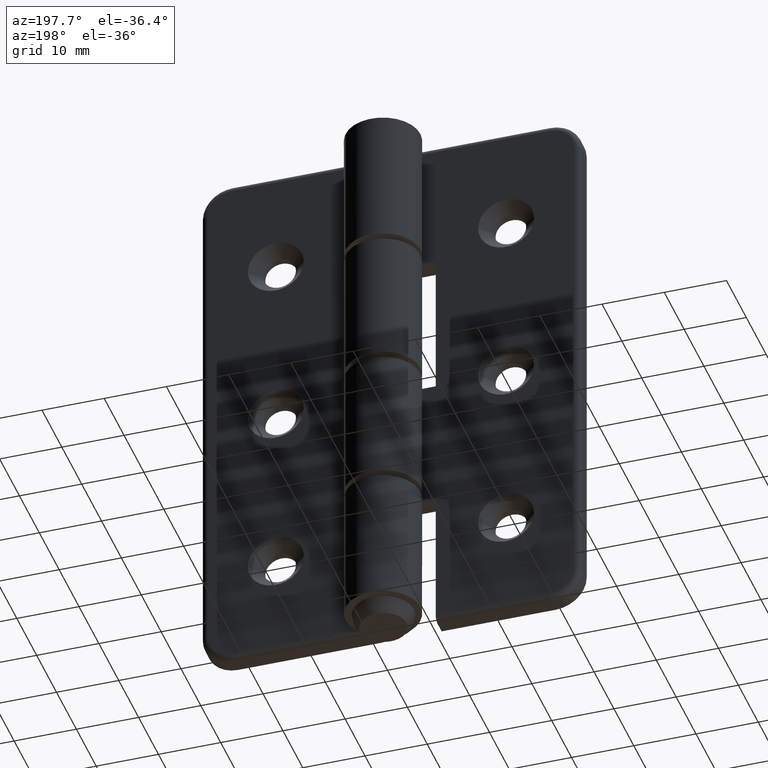
[diagram: clean part render]
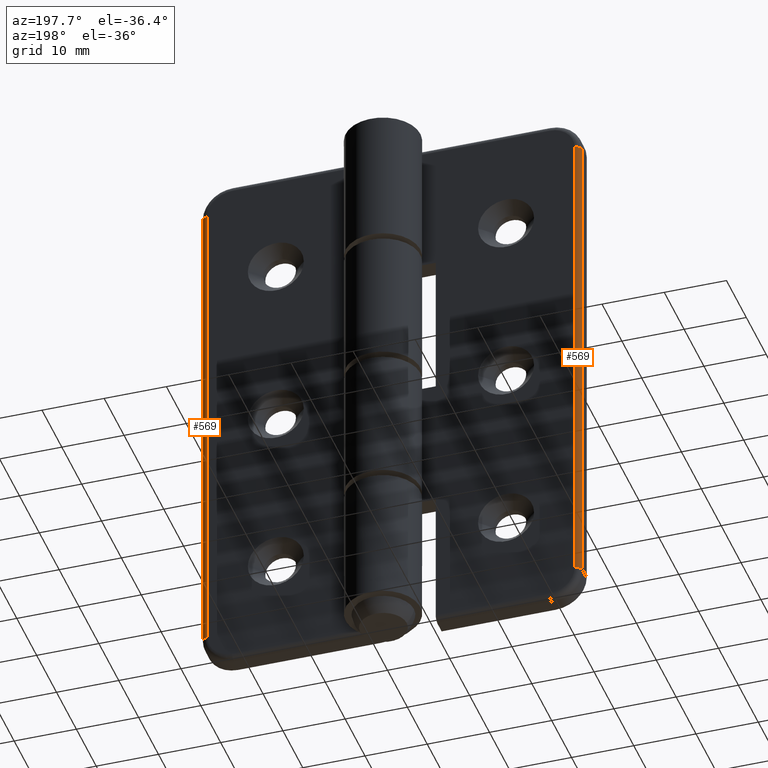
[diagram: same view with one multi-face feature highlighted, each face labeled with its STEP entity id]
A machine part, auxiliary view. The highlighted faces form ONE feature: a constant-radius fillet chain: 2 tangent blend faces with common blend radius 1 mm. The faces share edges in the B-rep.
Their STEP definitions:
[1] entity #569 (Cylinder):
#50=LINE('',#910,#83);
#51=LINE('',#913,#84);
#83=VECTOR('',#727,80.);
#84=VECTOR('',#730,80.);
#120=CYLINDRICAL_SURFACE('',#621,1.);
#160=FACE_OUTER_BOUND('',#201,.T.);
#201=EDGE_LOOP('',(#430,#431,#432,#433));
#254=CIRCLE('',#617,1.);
#257=CIRCLE('',#622,1.);
#293=VERTEX_POINT('',#897);
#294=VERTEX_POINT('',#899);
#297=VERTEX_POINT('',#909);
#298=VERTEX_POINT('',#911);
#347=EDGE_CURVE('',#293,#294,#254,.T.);
#352=EDGE_CURVE('',#293,#297,#50,.T.);
#353=EDGE_CURVE('',#298,#297,#257,.T.);
#354=EDGE_CURVE('',#298,#294,#51,.T.);
#430=ORIENTED_EDGE('',*,*,#347,.F.);
#431=ORIENTED_EDGE('',*,*,#352,.T.);
#432=ORIENTED_EDGE('',*,*,#353,.F.);
#433=ORIENTED_EDGE('',*,*,#354,.T.);
#569=ADVANCED_FACE('',(#160),#120,.T.);
#617=AXIS2_PLACEMENT_3D('',#900,#715,#716);
#621=AXIS2_PLACEMENT_3D('',#908,#725,#726);
#622=AXIS2_PLACEMENT_3D('',#912,#728,#729);
#715=DIRECTION('center_axis',(0.,0.,-1.));
#716=DIRECTION('ref_axis',(-1.,0.,0.));
#725=DIRECTION('center_axis',(0.,0.,-1.));
#726=DIRECTION('ref_axis',(-0.707106781186546,0.707106781186549,0.));
#727=DIRECTION('',(0.,0.,1.));
#728=DIRECTION('center_axis',(0.,0.,1.));
#729=DIRECTION('ref_axis',(0.,1.,0.));
#730=DIRECTION('',(0.,0.,-1.));
#897=CARTESIAN_POINT('',(-30.5,2.,-85.));
#899=CARTESIAN_POINT('',(-29.5,3.,-85.));
#900=CARTESIAN_POINT('Origin',(-29.5,2.,-85.));
#908=CARTESIAN_POINT('Origin',(-29.5,2.,0.));
#909=CARTESIAN_POINT('',(-30.5,2.,-5.));
#910=CARTESIAN_POINT('',(-30.5,2.,0.));
#911=CARTESIAN_POINT('',(-29.5,3.,-5.));
#912=CARTESIAN_POINT('Origin',(-29.5,2.,-5.));
#913=CARTESIAN_POINT('',(-29.5,3.,0.));
[2] entity #569 (Cylinder):
#50=LINE('',#910,#83);
#51=LINE('',#913,#84);
#83=VECTOR('',#727,80.);
#84=VECTOR('',#730,80.);
#120=CYLINDRICAL_SURFACE('',#621,1.);
#160=FACE_OUTER_BOUND('',#201,.T.);
#201=EDGE_LOOP('',(#430,#431,#432,#433));
#254=CIRCLE('',#617,1.);
#257=CIRCLE('',#622,1.);
#293=VERTEX_POINT('',#897);
#294=VERTEX_POINT('',#899);
#297=VERTEX_POINT('',#909);
#298=VERTEX_POINT('',#911);
#347=EDGE_CURVE('',#293,#294,#254,.T.);
#352=EDGE_CURVE('',#293,#297,#50,.T.);
#353=EDGE_CURVE('',#298,#297,#257,.T.);
#354=EDGE_CURVE('',#298,#294,#51,.T.);
#430=ORIENTED_EDGE('',*,*,#347,.F.);
#431=ORIENTED_EDGE('',*,*,#352,.T.);
#432=ORIENTED_EDGE('',*,*,#353,.F.);
#433=ORIENTED_EDGE('',*,*,#354,.T.);
#569=ADVANCED_FACE('',(#160),#120,.T.);
#617=AXIS2_PLACEMENT_3D('',#900,#715,#716);
#621=AXIS2_PLACEMENT_3D('',#908,#725,#726);
#622=AXIS2_PLACEMENT_3D('',#912,#728,#729);
#715=DIRECTION('center_axis',(0.,0.,-1.));
#716=DIRECTION('ref_axis',(-1.,0.,0.));
#725=DIRECTION('center_axis',(0.,0.,-1.));
#726=DIRECTION('ref_axis',(-0.707106781186546,0.707106781186549,0.));
#727=DIRECTION('',(0.,0.,1.));
#728=DIRECTION('center_axis',(0.,0.,1.));
#729=DIRECTION('ref_axis',(0.,1.,0.));
#730=DIRECTION('',(0.,0.,-1.));
#897=CARTESIAN_POINT('',(-30.5,2.,-85.));
#899=CARTESIAN_POINT('',(-29.5,3.,-85.));
#900=CARTESIAN_POINT('Origin',(-29.5,2.,-85.));
#908=CARTESIAN_POINT('Origin',(-29.5,2.,0.));
#909=CARTESIAN_POINT('',(-30.5,2.,-5.));
#910=CARTESIAN_POINT('',(-30.5,2.,0.));
#911=CARTESIAN_POINT('',(-29.5,3.,-5.));
#912=CARTESIAN_POINT('Origin',(-29.5,2.,-5.));
#913=CARTESIAN_POINT('',(-29.5,3.,0.));